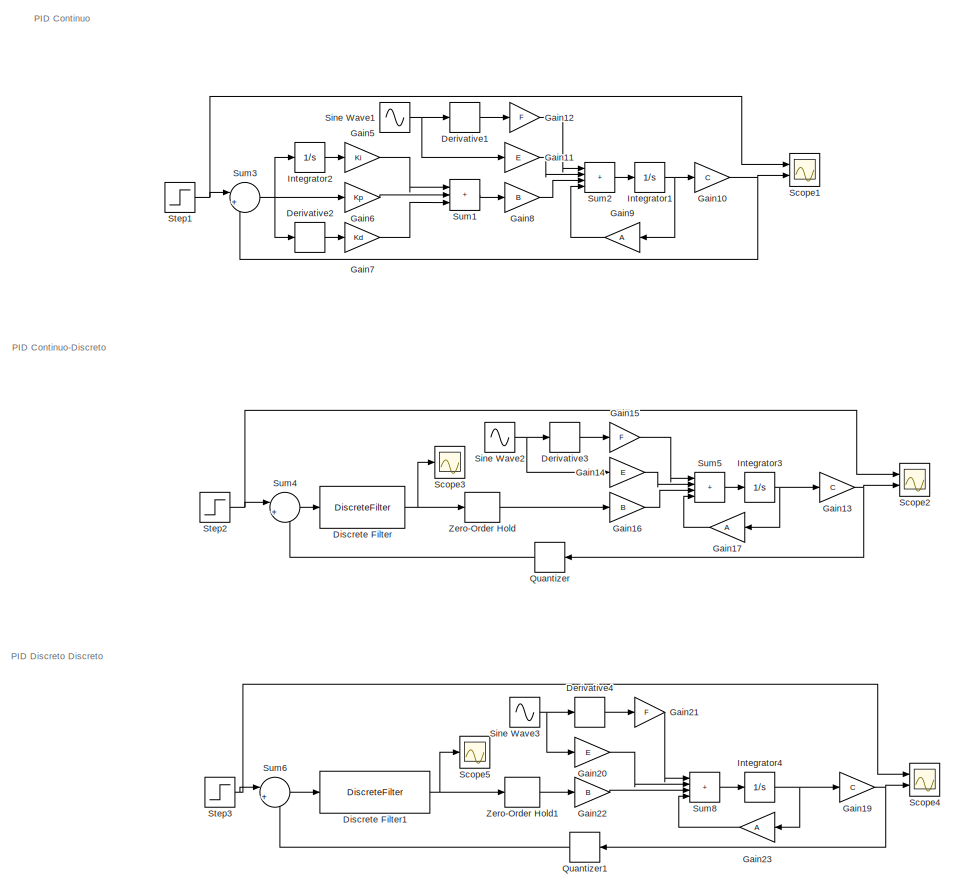
[diagram: root canvas - part 1/4, full width, top band]
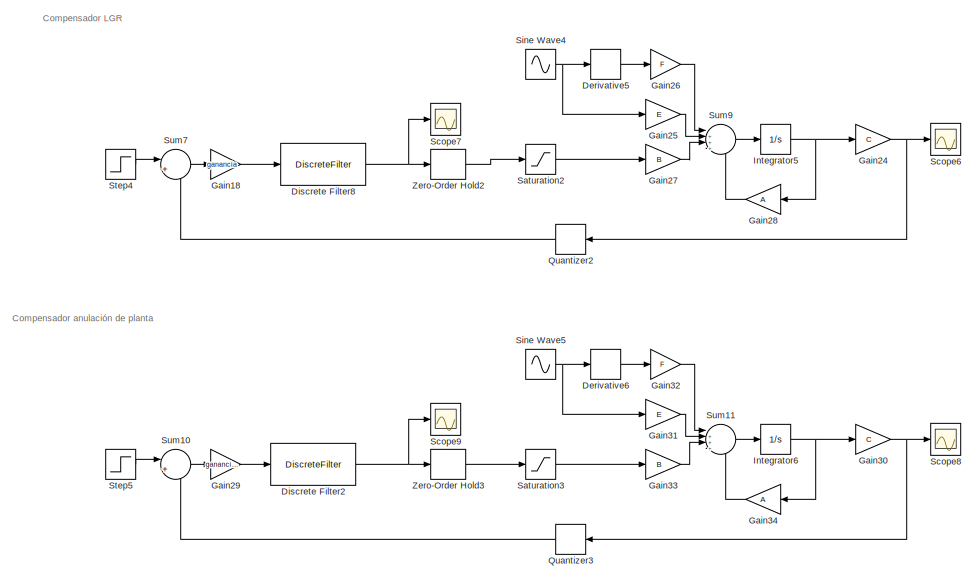
[diagram: root canvas - part 2/4, full width, middle band]
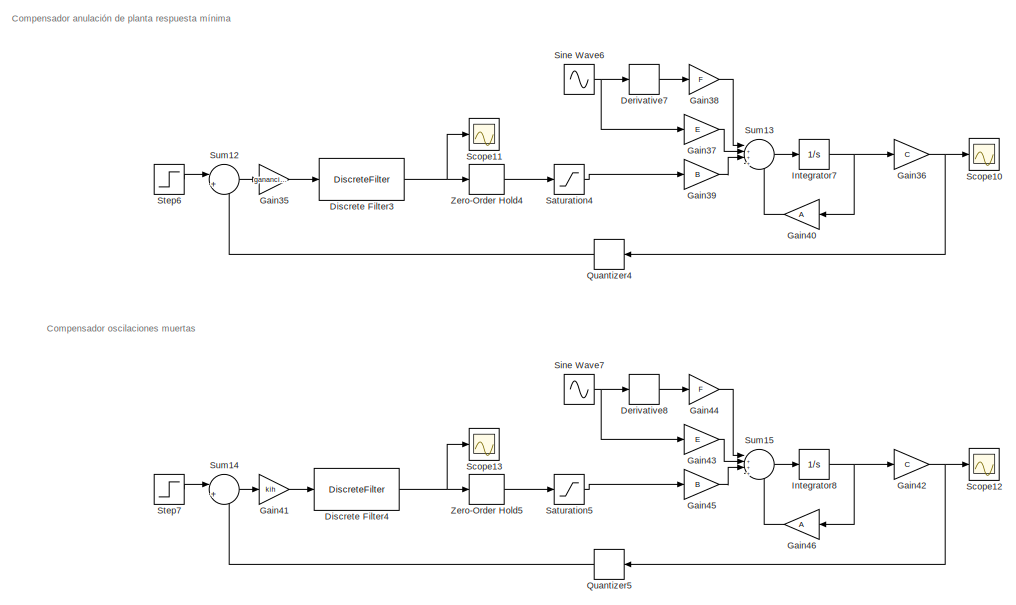
[diagram: root canvas - part 3/4, full width, bottom band]
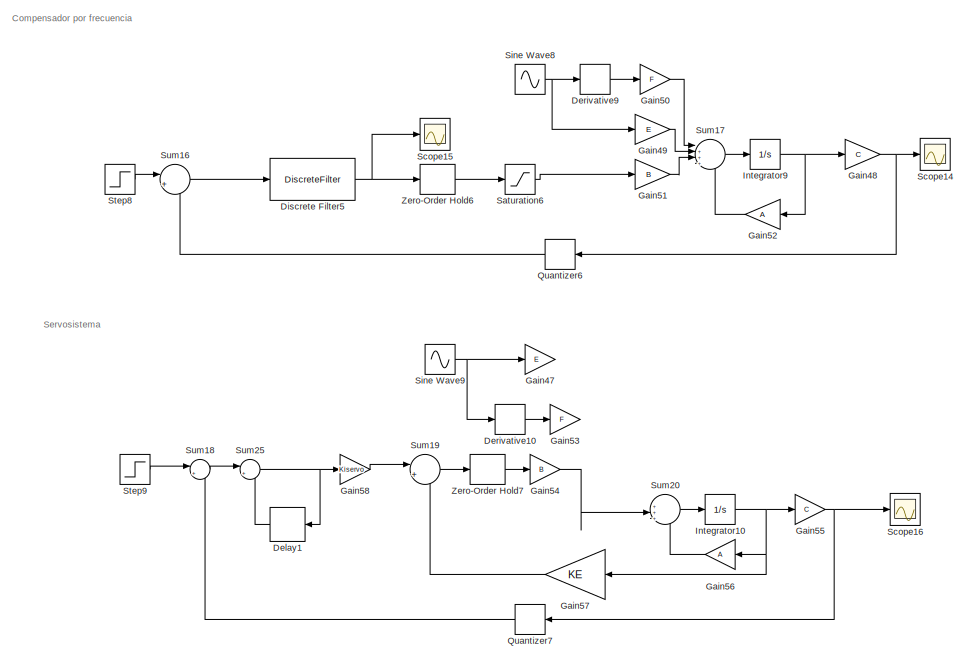
[diagram: root canvas - part 4/4, full width, bottom band]
MODEL slx_2e259601ef12
KIND model
CONFIG AbsTol = auto
CONFIG EnableMultiTasking = off
CONFIG FixedStep = auto
CONFIG MaxStep = auto
CONFIG MinStep = auto
CONFIG RelTol = 1e-3
CONFIG SampleTimeConstraint = Unconstrained
CONFIG Solver = VariableStepAuto
CONFIG SolverName = VariableStepAuto
CONFIG StartTime = 0.0
CONFIG StopTime = 5
BLOCK [Delay] Delay1
  Commented = on
  DelayLength = 1
  InputPortMap = u0
  Ports = [1, 1]
  SampleTime = Ts
BLOCK [Derivative] Derivative1
  Commented = on
BLOCK [Derivative] Derivative10
  Commented = on
BLOCK [Derivative] Derivative2
  Commented = on
BLOCK [Derivative] Derivative3
  Commented = on
BLOCK [Derivative] Derivative4
BLOCK [Derivative] Derivative5
  Commented = on
BLOCK [Derivative] Derivative6
  Commented = on
BLOCK [Derivative] Derivative7
  Commented = on
BLOCK [Derivative] Derivative8
  Commented = on
BLOCK [Derivative] Derivative9
  Commented = on
BLOCK [DiscreteFilter] Discrete Filter
  Commented = on
  Denominator = D1
  InputPortMap = u0
  Numerator = N1
  Ports = [1, 1]
  SampleTime = ts
BLOCK [DiscreteFilter] Discrete Filter1
  Denominator = [1 S0-1 S0]
  InputPortMap = u0
  Numerator = [Q0 Q1 Q2]
  Ports = [1, 1]
  SampleTime = tm
BLOCK [DiscreteFilter] Discrete Filter2
  Commented = on
  Denominator = [1 -ceroanu]
  InputPortMap = u0
  Numerator = numanu
  Ports = [1, 1]
  SampleTime = tm
BLOCK [DiscreteFilter] Discrete Filter3
  Commented = on
  Denominator = denres
  InputPortMap = u0
  Numerator = numres
  Ports = [1, 1]
  SampleTime = tm
BLOCK [DiscreteFilter] Discrete Filter4
  Commented = on
  Denominator = dcont
  InputPortMap = u0
  Numerator = ncont
  Ports = [1, 1]
  SampleTime = tiempo
BLOCK [DiscreteFilter] Discrete Filter5
  Commented = on
  Denominator = cdty
  InputPortMap = u0
  Numerator = cnty
  Ports = [1, 1]
  SampleTime = T
BLOCK [DiscreteFilter] Discrete Filter8
  Commented = on
  Denominator = denominador
  InputPortMap = u0
  Numerator = numerador
  Ports = [1, 1]
  SampleTime = T
BLOCK [Gain] Gain10
  Commented = on
  Gain = C
  Multiplication = Matrix(K*u)
BLOCK [Gain] Gain11
  Commented = on
  Gain = E
  Multiplication = Matrix(K*u)
BLOCK [Gain] Gain12
  Commented = on
  Gain = F
  Multiplication = Matrix(K*u)
BLOCK [Gain] Gain13
  Commented = on
  Gain = C
  Multiplication = Matrix(K*u)
BLOCK [Gain] Gain14
  Commented = on
  Gain = E
  Multiplication = Matrix(K*u)
BLOCK [Gain] Gain15
  Commented = on
  Gain = F
  Multiplication = Matrix(K*u)
BLOCK [Gain] Gain16
  Commented = on
  Gain = B
  Multiplication = Matrix(K*u)
BLOCK [Gain] Gain17
  Commented = on
  Gain = A
  Multiplication = Matrix(K*u)
BLOCK [Gain] Gain18
  Commented = on
  Gain = ganancia
BLOCK [Gain] Gain19
  Gain = C
  Multiplication = Matrix(K*u)
BLOCK [Gain] Gain20
  Gain = E
  Multiplication = Matrix(K*u)
BLOCK [Gain] Gain21
  Gain = F
  Multiplication = Matrix(K*u)
BLOCK [Gain] Gain22
  Gain = B
  Multiplication = Matrix(K*u)
BLOCK [Gain] Gain23
  Gain = A
  Multiplication = Matrix(K*u)
BLOCK [Gain] Gain24
  Commented = on
  Gain = C
  Multiplication = Matrix(K*u)
BLOCK [Gain] Gain25
  Commented = on
  Gain = E
  Multiplication = Matrix(K*u)
BLOCK [Gain] Gain26
  Commented = on
  Gain = F
  Multiplication = Matrix(K*u)
BLOCK [Gain] Gain27
  Commented = on
  Gain = B
  Multiplication = Matrix(K*u)
BLOCK [Gain] Gain28
  Commented = on
  Gain = A
  Multiplication = Matrix(K*u)
BLOCK [Gain] Gain29
  Commented = on
  Gain = gananciaanu
BLOCK [Gain] Gain30
  Commented = on
  Gain = C
  Multiplication = Matrix(K*u)
BLOCK [Gain] Gain31
  Commented = on
  Gain = E
  Multiplication = Matrix(K*u)
BLOCK [Gain] Gain32
  Commented = on
  Gain = F
  Multiplication = Matrix(K*u)
BLOCK [Gain] Gain33
  Commented = on
  Gain = B
  Multiplication = Matrix(K*u)
BLOCK [Gain] Gain34
  Commented = on
  Gain = A
  Multiplication = Matrix(K*u)
BLOCK [Gain] Gain35
  Commented = on
  Gain = gananciares
BLOCK [Gain] Gain36
  Commented = on
  Gain = C
  Multiplication = Matrix(K*u)
BLOCK [Gain] Gain37
  Commented = on
  Gain = E
  Multiplication = Matrix(K*u)
BLOCK [Gain] Gain38
  Commented = on
  Gain = F
  Multiplication = Matrix(K*u)
BLOCK [Gain] Gain39
  Commented = on
  Gain = B
  Multiplication = Matrix(K*u)
BLOCK [Gain] Gain40
  Commented = on
  Gain = A
  Multiplication = Matrix(K*u)
BLOCK [Gain] Gain41
  Commented = on
  Gain = kih
BLOCK [Gain] Gain42
  Commented = on
  Gain = C
  Multiplication = Matrix(K*u)
BLOCK [Gain] Gain43
  Commented = on
  Gain = E
  Multiplication = Matrix(K*u)
BLOCK [Gain] Gain44
  Commented = on
  Gain = F
  Multiplication = Matrix(K*u)
BLOCK [Gain] Gain45
  Commented = on
  Gain = B
  Multiplication = Matrix(K*u)
BLOCK [Gain] Gain46
  Commented = on
  Gain = A
  Multiplication = Matrix(K*u)
BLOCK [Gain] Gain47
  Commented = on
  Gain = E
  Multiplication = Matrix(K*u)
BLOCK [Gain] Gain48
  Commented = on
  Gain = C
  Multiplication = Matrix(K*u)
BLOCK [Gain] Gain49
  Commented = on
  Gain = E
  Multiplication = Matrix(K*u)
BLOCK [Gain] Gain5
  Commented = on
  Gain = Ki
BLOCK [Gain] Gain50
  Commented = on
  Gain = F
  Multiplication = Matrix(K*u)
BLOCK [Gain] Gain51
  Commented = on
  Gain = B
  Multiplication = Matrix(K*u)
BLOCK [Gain] Gain52
  Commented = on
  Gain = A
  Multiplication = Matrix(K*u)
BLOCK [Gain] Gain53
  Commented = on
  Gain = F
  Multiplication = Matrix(K*u)
BLOCK [Gain] Gain54
  Commented = on
  Gain = B
  Multiplication = Matrix(K*u)
BLOCK [Gain] Gain55
  Commented = on
  Gain = C
  Multiplication = Matrix(K*u)
BLOCK [Gain] Gain56
  Commented = on
  Gain = A
  Multiplication = Matrix(K*u)
BLOCK [Gain] Gain57
  Commented = on
  Gain = KE
  Multiplication = Matrix(K*u) (u vector)
BLOCK [Gain] Gain58
  Commented = on
  Gain = Kiservo
BLOCK [Gain] Gain6
  Commented = on
  Gain = Kp
BLOCK [Gain] Gain7
  Commented = on
  Gain = Kd
BLOCK [Gain] Gain8
  Commented = on
  Gain = B
  Multiplication = Matrix(K*u)
BLOCK [Gain] Gain9
  Commented = on
  Gain = A
  Multiplication = Matrix(K*u)
BLOCK [Integrator] Integrator1
  Commented = on
  InitialCondition = -1
  Ports = [1, 1]
BLOCK [Integrator] Integrator10
  Commented = on
  InitialCondition = -1
  Ports = [1, 1]
BLOCK [Integrator] Integrator2
  Commented = on
  Ports = [1, 1]
BLOCK [Integrator] Integrator3
  Commented = on
  InitialCondition = -1
  Ports = [1, 1]
BLOCK [Integrator] Integrator4
  InitialCondition = -1
  Ports = [1, 1]
BLOCK [Integrator] Integrator5
  Commented = on
  InitialCondition = -1
  Ports = [1, 1]
BLOCK [Integrator] Integrator6
  Commented = on
  InitialCondition = -1
  Ports = [1, 1]
BLOCK [Integrator] Integrator7
  Commented = on
  InitialCondition = -1
  Ports = [1, 1]
BLOCK [Integrator] Integrator8
  Commented = on
  InitialCondition = -1
  Ports = [1, 1]
BLOCK [Integrator] Integrator9
  Commented = on
  InitialCondition = -1
  Ports = [1, 1]
BLOCK [Quantizer] Quantizer
  Commented = on
  QuantizationInterval = 5/1048
BLOCK [Quantizer] Quantizer1
  QuantizationInterval = 5/1048
BLOCK [Quantizer] Quantizer2
  Commented = on
  QuantizationInterval = 5/1048
BLOCK [Quantizer] Quantizer3
  Commented = on
  QuantizationInterval = 5/1048
BLOCK [Quantizer] Quantizer4
  Commented = on
  QuantizationInterval = 5/1048
BLOCK [Quantizer] Quantizer5
  Commented = on
  QuantizationInterval = 5/1048
BLOCK [Quantizer] Quantizer6
  Commented = on
  QuantizationInterval = 5/1048
BLOCK [Quantizer] Quantizer7
  Commented = on
  QuantizationInterval = 805.6640e-06
BLOCK [Saturate] Saturation2
  Commented = on
  LowerLimit = -100
  UpperLimit = 100
BLOCK [Saturate] Saturation3
  Commented = on
  LowerLimit = -100
  UpperLimit = 100
BLOCK [Saturate] Saturation4
  Commented = on
  LowerLimit = -100
  UpperLimit = 100
BLOCK [Saturate] Saturation5
  Commented = on
  LowerLimit = -100
  UpperLimit = 100
BLOCK [Saturate] Saturation6
  Commented = on
  LowerLimit = -30000
  UpperLimit = 30000
BLOCK [Scope] Scope1
  Commented = on
  Floating = off
  NumInputPorts = 2
  Ports = [2]
  ScopeSpecificationString = Simulink.scopes.TimeScopeBlockCfg('CurrentConfiguration', extmgr.ConfigurationSet(extmgr.Configuration('Core','General UI',true,'FigureColor',[0.941176470588235 0.941176470588235 0.941176470588235]),extmgr.Configuration('Core','Source UI',true),extmgr.Configuration('Sources','WiredSimulink',true,'DataLoggingVariableName','ScopeData4'),extmgr.Configuration('Visuals','Time Domain',true,'SerializedDi...<+1703ch>
BLOCK [Scope] Scope10
  Commented = on
  Floating = off
  NumInputPorts = 1
  Ports = [1]
  ScopeSpecificationString = Simulink.scopes.TimeScopeBlockCfg('CurrentConfiguration', extmgr.ConfigurationSet(extmgr.Configuration('Core','General UI',true),extmgr.Configuration('Core','Source UI',true),extmgr.Configuration('Sources','WiredSimulink',true,'DataLoggingVariableName','ScopeData4'),extmgr.Configuration('Visuals','Time Domain',true,'SerializedDisplays',{struct('MinYLimReal','-2.63372','MaxYLimReal','3.37921','YLab...<+1442ch>
BLOCK [Scope] Scope11
  Commented = on
  Floating = off
  NumInputPorts = 1
  Ports = [1]
  ScopeSpecificationString = Simulink.scopes.TimeScopeBlockCfg('CurrentConfiguration', extmgr.ConfigurationSet(extmgr.Configuration('Core','General UI',true),extmgr.Configuration('Core','Source UI',true),extmgr.Configuration('Sources','WiredSimulink',true,'DataLoggingVariableName','ScopeData5'),extmgr.Configuration('Visuals','Time Domain',true,'SerializedDisplays',{struct('MinYLimReal','-7092862.42848','MaxYLimReal','5419224....<+1465ch>
BLOCK [Scope] Scope12
  Commented = on
  Floating = off
  NumInputPorts = 1
  Ports = [1]
  ScopeSpecificationString = Simulink.scopes.TimeScopeBlockCfg('CurrentConfiguration', extmgr.ConfigurationSet(extmgr.Configuration('Core','General UI',true),extmgr.Configuration('Core','Source UI',true),extmgr.Configuration('Sources','WiredSimulink',true,'DataLoggingVariableName','ScopeData1'),extmgr.Configuration('Visuals','Time Domain',true,'SerializedDisplays',{struct('MinYLimReal','-0.39','MaxYLimReal','0.16194','YLabelR...<+1430ch>
BLOCK [Scope] Scope13
  Commented = on
  Floating = off
  NumInputPorts = 1
  Ports = [1]
  ScopeSpecificationString = Simulink.scopes.TimeScopeBlockCfg('CurrentConfiguration', extmgr.ConfigurationSet(extmgr.Configuration('Core','General UI',true),extmgr.Configuration('Core','Source UI',true),extmgr.Configuration('Sources','WiredSimulink',true,'DataLoggingVariableName','ScopeData2'),extmgr.Configuration('Visuals','Time Domain',true,'SerializedDisplays',{struct('MinYLimReal','-7092862.42848','MaxYLimReal','5419224....<+1465ch>
BLOCK [Scope] Scope14
  Commented = on
  Floating = off
  NumInputPorts = 1
  Ports = [1]
  ScopeSpecificationString = Simulink.scopes.TimeScopeBlockCfg('CurrentConfiguration', extmgr.ConfigurationSet(extmgr.Configuration('Core','General UI',true),extmgr.Configuration('Core','Source UI',true),extmgr.Configuration('Sources','WiredSimulink',true,'DataLoggingVariableName','ScopeData1'),extmgr.Configuration('Visuals','Time Domain',true,'SerializedDisplays',{struct('MinYLimReal','-1.12539','MaxYLimReal','0.12806','YLab...<+1440ch>
BLOCK [Scope] Scope15
  Commented = on
  Floating = off
  NumInputPorts = 1
  Ports = [1]
  ScopeSpecificationString = Simulink.scopes.TimeScopeBlockCfg('CurrentConfiguration', extmgr.ConfigurationSet(extmgr.Configuration('Core','General UI',true),extmgr.Configuration('Core','Source UI',true),extmgr.Configuration('Sources','WiredSimulink',true,'DataLoggingVariableName','ScopeData2'),extmgr.Configuration('Visuals','Time Domain',true,'SerializedDisplays',{struct('MinYLimReal','-11.82015','MaxYLimReal','27.20623','YL...<+1425ch>
BLOCK [Scope] Scope16
  Commented = on
  Floating = off
  NumInputPorts = 1
  Ports = [1]
  ScopeSpecificationString = Simulink.scopes.TimeScopeBlockCfg('CurrentConfiguration', extmgr.ConfigurationSet(extmgr.Configuration('Core','General UI',true,'FigureColor',[0.156862745098039 0.156862745098039 0.156862745098039]),extmgr.Configuration('Core','Source UI',true),extmgr.Configuration('Sources','WiredSimulink',true,'DataLoggingVariableName','ScopeData3','DataLoggingSaveFormat','StructureWithTime','DataLoggingDecimati...<+2810ch>
BLOCK [Scope] Scope2
  Commented = on
  Floating = off
  NumInputPorts = 2
  Ports = [2]
  ScopeSpecificationString = Simulink.scopes.TimeScopeBlockCfg('CurrentConfiguration', extmgr.ConfigurationSet(extmgr.Configuration('Core','General UI',true,'FigureColor',[0.941176470588235 0.941176470588235 0.941176470588235]),extmgr.Configuration('Core','Source UI',true),extmgr.Configuration('Sources','WiredSimulink',true,'DataLoggingVariableName','ScopeData1'),extmgr.Configuration('Visuals','Time Domain',true,'SerializedDi...<+1699ch>
BLOCK [Scope] Scope3
  Commented = on
  Floating = off
  NumInputPorts = 1
  Ports = [1]
  ScopeSpecificationString = Simulink.scopes.TimeScopeBlockCfg('CurrentConfiguration', extmgr.ConfigurationSet(extmgr.Configuration('Core','General UI',true),extmgr.Configuration('Core','Source UI',true),extmgr.Configuration('Sources','WiredSimulink',true,'DataLoggingVariableName','ScopeData3'),extmgr.Configuration('Visuals','Time Domain',true,'SerializedDisplays',{struct('MinYLimReal','-877259.35493','MaxYLimReal','916434.46...<+1408ch>
BLOCK [Scope] Scope4
  Floating = off
  NumInputPorts = 2
  Ports = [2]
  ScopeSpecificationString = Simulink.scopes.TimeScopeBlockCfg('CurrentConfiguration', extmgr.ConfigurationSet(extmgr.Configuration('Core','General UI',true,'FigureColor',[0.941176470588235 0.941176470588235 0.941176470588235]),extmgr.Configuration('Core','Source UI',true),extmgr.Configuration('Sources','WiredSimulink',true,'DataLoggingVariableName','ScopeData2'),extmgr.Configuration('Visuals','Time Domain',true,'SerializedDi...<+1713ch>
BLOCK [Scope] Scope5
  Floating = off
  NumInputPorts = 1
  Ports = [1]
  ScopeSpecificationString = Simulink.scopes.TimeScopeBlockCfg('CurrentConfiguration', extmgr.ConfigurationSet(extmgr.Configuration('Core','General UI',true),extmgr.Configuration('Core','Source UI',true),extmgr.Configuration('Sources','WiredSimulink',true,'DataLoggingVariableName','ScopeData5'),extmgr.Configuration('Visuals','Time Domain',true,'SerializedDisplays',{struct('MinYLimReal','-64979780561921470307964284200192561274...<+2581ch>
BLOCK [Scope] Scope6
  Commented = on
  Floating = off
  NumInputPorts = 1
  Ports = [1]
  ScopeSpecificationString = Simulink.scopes.TimeScopeBlockCfg('CurrentConfiguration', extmgr.ConfigurationSet(extmgr.Configuration('Core','General UI',true),extmgr.Configuration('Core','Source UI',true),extmgr.Configuration('Sources','WiredSimulink',true,'DataLoggingVariableName','ScopeData6'),extmgr.Configuration('Visuals','Time Domain',true,'SerializedDisplays',{struct('MinYLimReal','-1.16938','MaxYLimReal','0.52446','YLab...<+1444ch>
BLOCK [Scope] Scope7
  Commented = on
  Floating = off
  NumInputPorts = 1
  Ports = [1]
  ScopeSpecificationString = Simulink.scopes.TimeScopeBlockCfg('CurrentConfiguration', extmgr.ConfigurationSet(extmgr.Configuration('Core','General UI',true),extmgr.Configuration('Core','Source UI',true),extmgr.Configuration('Sources','WiredSimulink',true,'DataLoggingVariableName','ScopeData1'),extmgr.Configuration('Visuals','Time Domain',true,'SerializedDisplays',{struct('MinYLimReal','-78645338028397823864854937984822380709...<+3733ch>
BLOCK [Scope] Scope8
  Commented = on
  Floating = off
  NumInputPorts = 1
  Ports = [1]
  ScopeSpecificationString = Simulink.scopes.TimeScopeBlockCfg('CurrentConfiguration', extmgr.ConfigurationSet(extmgr.Configuration('Core','General UI',true),extmgr.Configuration('Core','Source UI',true),extmgr.Configuration('Sources','WiredSimulink',true,'DataLoggingVariableName','ScopeData2'),extmgr.Configuration('Visuals','Time Domain',true,'SerializedDisplays',{struct('MinYLimReal','-2.63372','MaxYLimReal','3.37921','YLab...<+1442ch>
BLOCK [Scope] Scope9
  Commented = on
  Floating = off
  NumInputPorts = 1
  Ports = [1]
  ScopeSpecificationString = Simulink.scopes.TimeScopeBlockCfg('CurrentConfiguration', extmgr.ConfigurationSet(extmgr.Configuration('Core','General UI',true),extmgr.Configuration('Core','Source UI',true),extmgr.Configuration('Sources','WiredSimulink',true,'DataLoggingVariableName','ScopeData3'),extmgr.Configuration('Visuals','Time Domain',true,'SerializedDisplays',{struct('MinYLimReal','-7092862.42848','MaxYLimReal','5419224....<+1465ch>
BLOCK [Sin] Sine Wave1
  Amplitude = 0.5
  Commented = on
  Frequency = pi/4
  Ports = [0, 1]
  SampleTime = 0
BLOCK [Sin] Sine Wave2
  Amplitude = 0.5
  Commented = on
  Frequency = pi/4
  Ports = [0, 1]
  SampleTime = 0
BLOCK [Sin] Sine Wave3
  Amplitude = 0.5
  Frequency = pi/4
  Ports = [0, 1]
  SampleTime = 0
BLOCK [Sin] Sine Wave4
  Amplitude = 0.5
  Commented = on
  Frequency = pi/4
  Ports = [0, 1]
  SampleTime = 0
BLOCK [Sin] Sine Wave5
  Amplitude = 0.5
  Commented = on
  Frequency = pi/4
  Ports = [0, 1]
  SampleTime = 0
BLOCK [Sin] Sine Wave6
  Amplitude = 0.5
  Commented = on
  Frequency = pi/4
  Ports = [0, 1]
  SampleTime = 0
BLOCK [Sin] Sine Wave7
  Amplitude = 0.5
  Commented = on
  Frequency = pi/4
  Ports = [0, 1]
  SampleTime = 0
BLOCK [Sin] Sine Wave8
  Amplitude = 0.5
  Commented = on
  Frequency = pi/4
  Ports = [0, 1]
  SampleTime = 0
BLOCK [Sin] Sine Wave9
  Amplitude = 0.5
  Commented = on
  Frequency = pi/4
  Ports = [0, 1]
  SampleTime = 0
BLOCK [Step] Step1
  Commented = on
  SampleTime = 0
  Time = 0
BLOCK [Step] Step2
  Commented = on
  SampleTime = 0
  Time = 0
BLOCK [Step] Step3
  SampleTime = 0
  Time = 0
BLOCK [Step] Step4
  After = 0
  Commented = on
  SampleTime = 0
  Time = 0
BLOCK [Step] Step5
  After = 0
  Commented = on
  SampleTime = 0
  Time = 0
BLOCK [Step] Step6
  After = 0
  Commented = on
  SampleTime = 0
  Time = 0
BLOCK [Step] Step7
  After = 0
  Commented = on
  SampleTime = 0
  Time = 0
BLOCK [Step] Step8
  After = 0
  Commented = on
  SampleTime = 0
  Time = 0
BLOCK [Step] Step9
  After = 0
  Commented = on
  SampleTime = 0
  Time = 0
BLOCK [Sum] Sum1
  Commented = on
  IconShape = rectangular
  Inputs = |+++
  Ports = [3, 1]
BLOCK [Sum] Sum10
  Commented = on
  Inputs = |+-
  Ports = [2, 1]
BLOCK [Sum] Sum11
  Commented = on
  Inputs = |++++
  Ports = [4, 1]
BLOCK [Sum] Sum12
  Commented = on
  Inputs = |+-
  Ports = [2, 1]
BLOCK [Sum] Sum13
  Commented = on
  Inputs = |++++
  Ports = [4, 1]
BLOCK [Sum] Sum14
  Commented = on
  Inputs = |+-
  Ports = [2, 1]
BLOCK [Sum] Sum15
  Commented = on
  Inputs = |++++
  Ports = [4, 1]
BLOCK [Sum] Sum16
  Commented = on
  Inputs = |+-
  Ports = [2, 1]
BLOCK [Sum] Sum17
  Commented = on
  Inputs = |++++
  Ports = [4, 1]
BLOCK [Sum] Sum18
  Commented = on
  Inputs = |+-
  Ports = [2, 1]
BLOCK [Sum] Sum19
  Commented = on
  Inputs = |+-
  Ports = [2, 1]
BLOCK [Sum] Sum2
  Commented = on
  IconShape = rectangular
  Inputs = |++++
  Ports = [4, 1]
BLOCK [Sum] Sum20
  Commented = on
  Inputs = |++++
  Ports = [4, 1]
BLOCK [Sum] Sum25
  Commented = on
  Inputs = |++
  Ports = [2, 1]
BLOCK [Sum] Sum3
  Commented = on
  Inputs = |+-
  Ports = [2, 1]
BLOCK [Sum] Sum4
  Commented = on
  Inputs = |+-
  Ports = [2, 1]
BLOCK [Sum] Sum5
  Commented = on
  IconShape = rectangular
  Inputs = |++++
  Ports = [4, 1]
BLOCK [Sum] Sum6
  Inputs = |+-
  Ports = [2, 1]
BLOCK [Sum] Sum7
  Commented = on
  Inputs = |+-
  Ports = [2, 1]
BLOCK [Sum] Sum8
  IconShape = rectangular
  Inputs = |++++
  Ports = [4, 1]
BLOCK [Sum] Sum9
  Commented = on
  Inputs = |++++
  Ports = [4, 1]
BLOCK [ZeroOrderHold] Zero-Order Hold
  Commented = on
  SampleTime = ts
BLOCK [ZeroOrderHold] Zero-Order Hold1
  SampleTime = tm
BLOCK [ZeroOrderHold] Zero-Order Hold2
  Commented = on
  SampleTime = T
BLOCK [ZeroOrderHold] Zero-Order Hold3
  Commented = on
  SampleTime = tm
BLOCK [ZeroOrderHold] Zero-Order Hold4
  Commented = on
  SampleTime = tm
BLOCK [ZeroOrderHold] Zero-Order Hold5
  Commented = on
  SampleTime = tiempo
BLOCK [ZeroOrderHold] Zero-Order Hold6
  Commented = on
  SampleTime = T
BLOCK [ZeroOrderHold] Zero-Order Hold7
  Commented = on
  SampleTime = Ts
ANNOTATION (root): Compensador LGR
ANNOTATION (root): Compensador anulación de planta
ANNOTATION (root): Compensador anulación de planta respuesta mínima
ANNOTATION (root): Compensador oscilaciones muertas
ANNOTATION (root): Compensador por frecuencia
ANNOTATION (root): PID Continuo
ANNOTATION (root): PID Continuo-Discreto
ANNOTATION (root): PID Discreto Discreto
ANNOTATION (root): Servosistema
LINE Delay1:1 -> Sum25:2
LINE Derivative10:1 -> Gain53:1
LINE Derivative1:1 -> Gain12:1
LINE Derivative2:1 -> Gain7:1
LINE Derivative3:1 -> Gain15:1
LINE Derivative4:1 -> Gain21:1
LINE Derivative5:1 -> Gain26:1
LINE Derivative6:1 -> Gain32:1
LINE Derivative7:1 -> Gain38:1
LINE Derivative8:1 -> Gain44:1
LINE Derivative9:1 -> Gain50:1
NET Discrete Filter1:1 -> Scope5:1, Zero-Order Hold1:1
NET Discrete Filter2:1 -> Scope9:1, Zero-Order Hold3:1
NET Discrete Filter3:1 -> Scope11:1, Zero-Order Hold4:1
NET Discrete Filter4:1 -> Scope13:1, Zero-Order Hold5:1
NET Discrete Filter5:1 -> Scope15:1, Zero-Order Hold6:1
NET Discrete Filter8:1 -> Scope7:1, Zero-Order Hold2:1
NET Discrete Filter:1 -> Scope3:1, Zero-Order Hold:1
NET Gain10:1 -> Scope1:2, Sum3:2
LINE Gain11:1 -> Sum2:2
LINE Gain12:1 -> Sum2:1
NET Gain13:1 -> Quantizer:1, Scope2:2
LINE Gain14:1 -> Sum5:2
LINE Gain15:1 -> Sum5:1
LINE Gain16:1 -> Sum5:3
LINE Gain17:1 -> Sum5:4
LINE Gain18:1 -> Discrete Filter8:1
NET Gain19:1 -> Quantizer1:1, Scope4:2
LINE Gain20:1 -> Sum8:2
LINE Gain21:1 -> Sum8:1
LINE Gain22:1 -> Sum8:3
LINE Gain23:1 -> Sum8:4
NET Gain24:1 -> Quantizer2:1, Scope6:1
LINE Gain25:1 -> Sum9:2
LINE Gain26:1 -> Sum9:1
LINE Gain27:1 -> Sum9:3
LINE Gain28:1 -> Sum9:4
LINE Gain29:1 -> Discrete Filter2:1
NET Gain30:1 -> Quantizer3:1, Scope8:1
LINE Gain31:1 -> Sum11:2
LINE Gain32:1 -> Sum11:1
LINE Gain33:1 -> Sum11:3
LINE Gain34:1 -> Sum11:4
LINE Gain35:1 -> Discrete Filter3:1
NET Gain36:1 -> Quantizer4:1, Scope10:1
LINE Gain37:1 -> Sum13:2
LINE Gain38:1 -> Sum13:1
LINE Gain39:1 -> Sum13:3
LINE Gain40:1 -> Sum13:4
LINE Gain41:1 -> Discrete Filter4:1
NET Gain42:1 -> Quantizer5:1, Scope12:1
LINE Gain43:1 -> Sum15:2
LINE Gain44:1 -> Sum15:1
LINE Gain45:1 -> Sum15:3
LINE Gain46:1 -> Sum15:4
NET Gain48:1 -> Quantizer6:1, Scope14:1
LINE Gain49:1 -> Sum17:2
LINE Gain50:1 -> Sum17:1
LINE Gain51:1 -> Sum17:3
LINE Gain52:1 -> Sum17:4
LINE Gain54:1 -> Sum20:3
NET Gain55:1 -> Quantizer7:1, Scope16:1
LINE Gain56:1 -> Sum20:4
LINE Gain57:1 -> Sum19:2
LINE Gain58:1 -> Sum19:1
LINE Gain5:1 -> Sum1:1
LINE Gain6:1 -> Sum1:2
LINE Gain7:1 -> Sum1:3
LINE Gain8:1 -> Sum2:3
LINE Gain9:1 -> Sum2:4
NET Integrator10:1 -> Gain55:1, Gain56:1, Gain57:1
NET Integrator1:1 -> Gain10:1, Gain9:1
LINE Integrator2:1 -> Gain5:1
NET Integrator3:1 -> Gain13:1, Gain17:1
NET Integrator4:1 -> Gain19:1, Gain23:1
NET Integrator5:1 -> Gain24:1, Gain28:1
NET Integrator6:1 -> Gain30:1, Gain34:1
NET Integrator7:1 -> Gain36:1, Gain40:1
NET Integrator8:1 -> Gain42:1, Gain46:1
NET Integrator9:1 -> Gain48:1, Gain52:1
LINE Quantizer1:1 -> Sum6:2
LINE Quantizer2:1 -> Sum7:2
LINE Quantizer3:1 -> Sum10:2
LINE Quantizer4:1 -> Sum12:2
LINE Quantizer5:1 -> Sum14:2
LINE Quantizer6:1 -> Sum16:2
LINE Quantizer7:1 -> Sum18:2
LINE Quantizer:1 -> Sum4:2
LINE Saturation2:1 -> Gain27:1
LINE Saturation3:1 -> Gain33:1
LINE Saturation4:1 -> Gain39:1
LINE Saturation5:1 -> Gain45:1
LINE Saturation6:1 -> Gain51:1
NET Sine Wave1:1 -> Derivative1:1, Gain11:1
NET Sine Wave2:1 -> Derivative3:1, Gain14:1
NET Sine Wave3:1 -> Derivative4:1, Gain20:1
NET Sine Wave4:1 -> Derivative5:1, Gain25:1
NET Sine Wave5:1 -> Derivative6:1, Gain31:1
NET Sine Wave6:1 -> Derivative7:1, Gain37:1
NET Sine Wave7:1 -> Derivative8:1, Gain43:1
NET Sine Wave8:1 -> Derivative9:1, Gain49:1
NET Sine Wave9:1 -> Derivative10:1, Gain47:1
NET Step1:1 -> Scope1:1, Sum3:1
NET Step2:1 -> Scope2:1, Sum4:1
NET Step3:1 -> Scope4:1, Sum6:1
LINE Step4:1 -> Sum7:1
LINE Step5:1 -> Sum10:1
LINE Step6:1 -> Sum12:1
LINE Step7:1 -> Sum14:1
LINE Step8:1 -> Sum16:1
LINE Step9:1 -> Sum18:1
LINE Sum10:1 -> Gain29:1
LINE Sum11:1 -> Integrator6:1
LINE Sum12:1 -> Gain35:1
LINE Sum13:1 -> Integrator7:1
LINE Sum14:1 -> Gain41:1
LINE Sum15:1 -> Integrator8:1
LINE Sum16:1 -> Discrete Filter5:1
LINE Sum17:1 -> Integrator9:1
LINE Sum18:1 -> Sum25:1
LINE Sum19:1 -> Zero-Order Hold7:1
LINE Sum1:1 -> Gain8:1
LINE Sum20:1 -> Integrator10:1
NET Sum25:1 -> Delay1:1, Gain58:1
LINE Sum2:1 -> Integrator1:1
NET Sum3:1 -> Derivative2:1, Gain6:1, Integrator2:1
LINE Sum4:1 -> Discrete Filter:1
LINE Sum5:1 -> Integrator3:1
LINE Sum6:1 -> Discrete Filter1:1
LINE Sum7:1 -> Gain18:1
LINE Sum8:1 -> Integrator4:1
LINE Sum9:1 -> Integrator5:1
LINE Zero-Order Hold1:1 -> Gain22:1
LINE Zero-Order Hold2:1 -> Saturation2:1
LINE Zero-Order Hold3:1 -> Saturation3:1
LINE Zero-Order Hold4:1 -> Saturation4:1
LINE Zero-Order Hold5:1 -> Saturation5:1
LINE Zero-Order Hold6:1 -> Saturation6:1
LINE Zero-Order Hold7:1 -> Gain54:1
LINE Zero-Order Hold:1 -> Gain16:1
note: NET lines group one-source signal fan-out (src -> all destinations, sorted); 1:1 wires keep LINE
